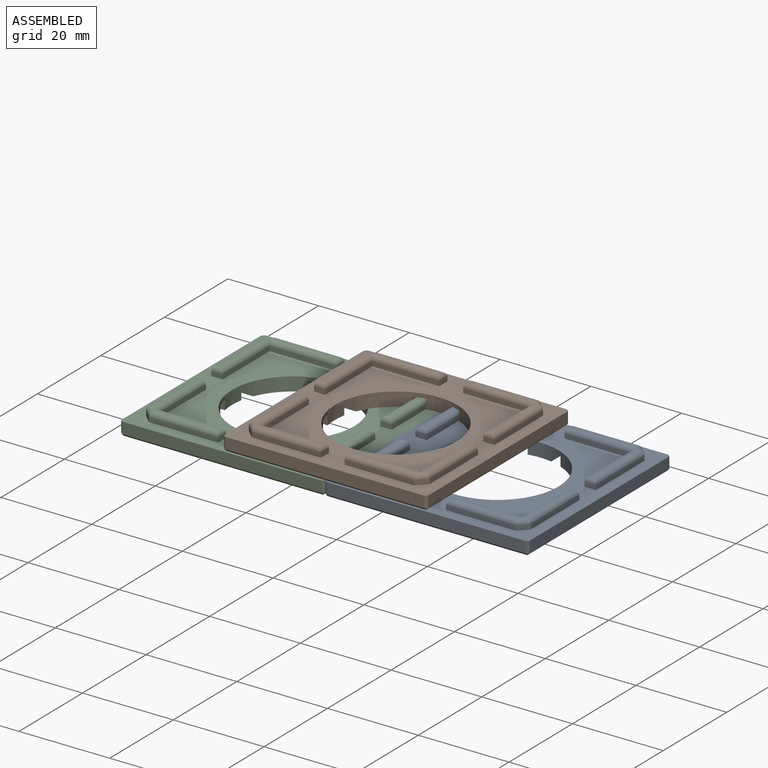
[diagram: assembled view]
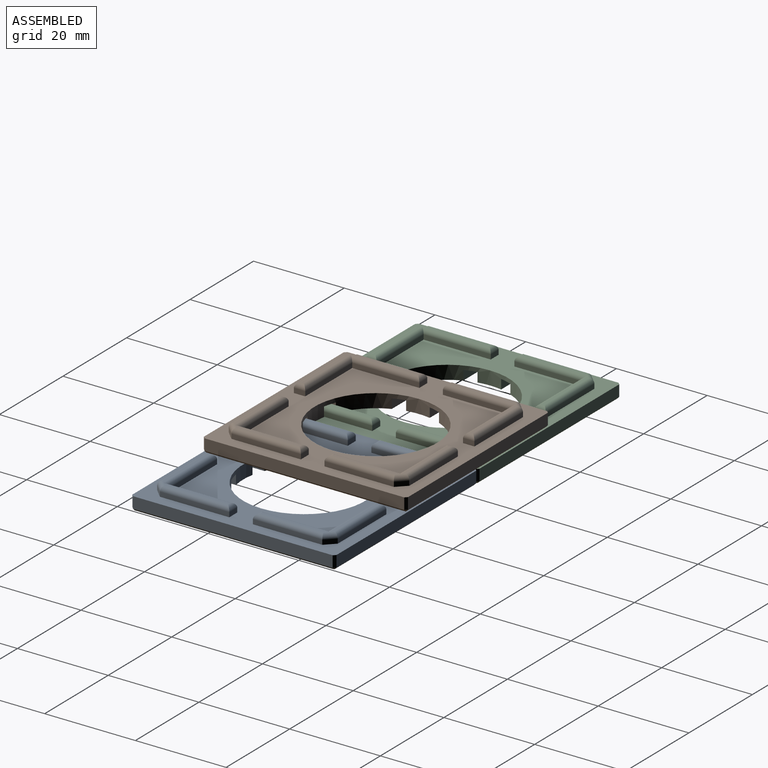
[diagram: assembled view, second angle]
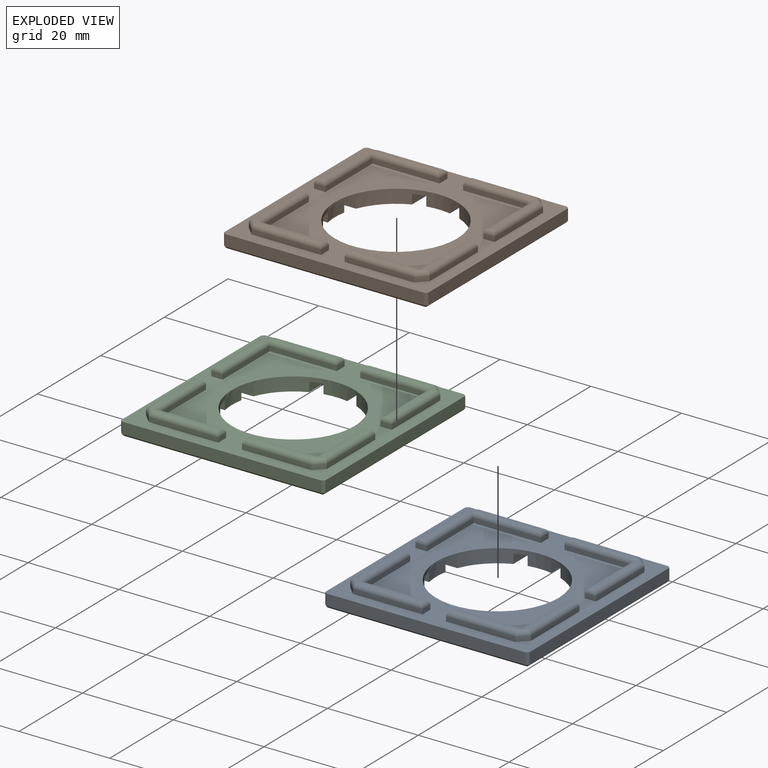
[diagram: exploded view]
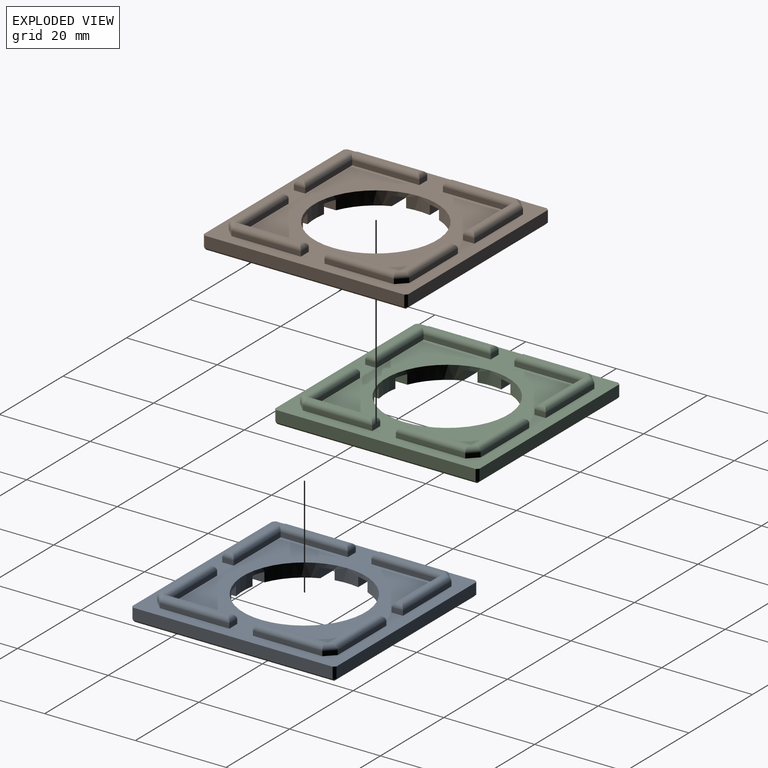
[diagram: exploded view, second angle]
ASSEMBLY  parts=3 mates=3
PART A: 128 faces, bbox 45x45x5 mm
  f0: plane 5.2x2.1mm, normal (0,-1,0), area 10.9mm2, adj f3,f51,f125,f126
  f1: plane 11.4x2.1mm, normal (0,-1,0), area 23.9mm2, adj f8,f51,f75,f127
  f2: cylinder r=13.5mm len=27mm, axis (0,0,1), area 208.7mm2, adj f3,f4,f7,f8,f11,f12,f15,f33
  f3: plane 5.2x3.85mm, normal (0,0,-1), area 19.2mm2, adj f0,f2,f125,f126
  f4: plane 11.9x11.9mm, normal (0,0,-1), area 108.2mm2, adj f2,f14,f48,f74,f115,f124
  f5: plane 5.2x2.1mm, normal (-1,0,0), area 10.9mm2, adj f7,f51,f121,f122
  f6: plane 11.4x2.1mm, normal (-1,0,0), area 23.9mm2, adj f12,f51,f72,f123
  f7: plane 5.2x3.85mm, normal (0,0,-1), area 19.2mm2, adj f2,f5,f121,f122
  f8: plane 11.9x11.9mm, normal (0,0,-1), area 108.2mm2, adj f1,f2,f47,f75,f120,f127
  f9: plane 5.2x2.1mm, normal (0,1,0), area 10.9mm2, adj f11,f51,f117,f118
  f10: plane 11.4x2.1mm, normal (0,1,0), area 23.9mm2, adj f33,f51,f73,f119
  f11: plane 5.2x3.85mm, normal (0,0,-1), area 19.2mm2, adj f2,f9,f117,f118
  f12: plane 11.9x11.9mm, normal (0,0,-1), area 108.2mm2, adj f2,f6,f46,f72,f116,f123
  f13: plane 5.2x2.1mm, normal (1,0,0), area 10.9mm2, adj f15,f51,f113,f114
  f14: plane 11.4x2.1mm, normal (1,0,0), area 23.9mm2, adj f4,f51,f74,f115
  f15: plane 5.2x3.85mm, normal (0,0,-1), area 19.2mm2, adj f2,f13,f113,f114
  f16: plane 14.39x0.5mm, normal (0,0,1), area 7.1mm2, adj f105,f106,f107,f110
  f17: plane 14.39x0.5mm, normal (0,0,1), area 7.1mm2, adj f98,f99,f100,f101
  f18: plane 14.39x0.5mm, normal (0,0,1), area 7.1mm2, adj f91,f92,f93,f94
  f19: plane 14.39x0.5mm, normal (0,0,1), area 7.1mm2, adj f85,f88,f89,f90
  f20: plane 14.39x0.5mm, normal (0,0,1), area 7.1mm2, adj f84,f86,f87,f89
  f21: plane 15.3x1mm, normal (0,-1,0), area 15.3mm2, adj f41,f68,f83,f96
  f22: plane 15.3x1mm, normal (0,-1,0), area 15.3mm2, adj f41,f71,f82,f90
  f23: plane 14.8x1mm, normal (0,1,0), area 14.8mm2, adj f41,f53,f83,f95
  f24: plane 14.39x0.5mm, normal (0,0,1), area 7.1mm2, adj f94,f95,f96,f97
  f25: plane 15.3x1mm, normal (-1,0,0), area 15.3mm2, adj f41,f69,f81,f103
  f26: plane 15.3x1mm, normal (-1,0,0), area 15.3mm2, adj f41,f68,f80,f92
  f27: plane 14.8x1mm, normal (1,0,0), area 14.8mm2, adj f41,f52,f81,f102
  f28: plane 15.3x1mm, normal (0,1,0), area 15.3mm2, adj f41,f70,f79,f111
  f29: plane 14.39x0.5mm, normal (0,0,1), area 7.1mm2, adj f101,f102,f103,f104
  f30: plane 14.8x1mm, normal (0,-1,0), area 14.8mm2, adj f41,f55,f79,f108
  f31: plane 15.3x1mm, normal (1,0,0), area 15.3mm2, adj f41,f71,f77,f87
  f32: plane 14.8x1mm, normal (-1,0,0), area 14.8mm2, adj f41,f54,f77,f86
  f33: plane 11.9x11.9mm, normal (0,0,-1), area 108.2mm2, adj f2,f10,f49,f73,f112,f119
  f34: plane 44x2.5mm, normal (-1,0,0), area 110mm2, adj f41,f56,f58,f59
  f35: plane 44x2.5mm, normal (0,-1,0), area 110mm2, adj f41,f56,f60,f61
  f36: plane 44x2.5mm, normal (1,0,0), area 110mm2, adj f41,f61,f65,f67
  f37: plane 44x2.5mm, normal (0,1,0), area 110mm2, adj f41,f58,f64,f67
  f38: plane 44x44mm, normal (0,0,-1), area 336mm2, adj f43,f44,f45,f50,f59,f60,f64,f65
  f39: plane 15.3x1mm, normal (0,1,0), area 15.3mm2, adj f41,f69,f78,f99
  f40: plane 15.3x1mm, normal (1,0,0), area 15.3mm2, adj f41,f70,f76,f106
  f41: plane 45x45mm, normal (0,0,1), area 1138.9mm2, adj f2,f21,f22,f23,f25,f26,f27,f28
  f42: plane 14.39x0.5mm, normal (0,0,1), area 7.1mm2, adj f108,f109,f110,f111
  f43: plane 40x2.1mm, normal (1,0,0), area 84mm2, adj f38,f44,f50,f51
  f44: plane 40x2.1mm, normal (0,-1,0), area 84mm2, adj f38,f43,f45,f51
  f45: plane 40x2.1mm, normal (-1,0,0), area 84mm2, adj f38,f44,f50,f51
  f46: plane 11.4x2.1mm, normal (0,1,0), area 23.9mm2, adj f12,f51,f72,f116
  f47: plane 11.4x2.1mm, normal (-1,0,0), area 23.9mm2, adj f8,f51,f75,f120
  f48: plane 11.4x2.1mm, normal (0,-1,0), area 23.9mm2, adj f4,f51,f74,f124
  f49: plane 11.4x2.1mm, normal (1,0,0), area 23.9mm2, adj f33,f51,f73,f112
  f50: plane 40x2.1mm, normal (0,1,0), area 84mm2, adj f38,f43,f45,f51
  f51: plane 40x40mm, normal (0,0,-1), area 518.2mm2, adj f0,f1,f2,f5,f6,f9,f10,f13
  f52: plane 14.8x1mm, normal (0,-1,0), area 14.8mm2, adj f27,f41,f78,f100
  f53: plane 14.8x1mm, normal (1,0,0), area 14.8mm2, adj f23,f41,f80,f93
  f54: plane 14.8x1mm, normal (0,1,0), area 14.8mm2, adj f32,f41,f82,f85
  f55: plane 14.8x1mm, normal (-1,0,0), area 14.8mm2, adj f30,f41,f76,f107
  f56: plane 2.5x0.5mm, normal (-0.71,-0.71,0), area 1.8mm2, adj f34,f35,f41,f57
  f57: plane 0.5x0.5mm, normal (-0.58,-0.58,-0.58), area 0.2mm2, adj f56,f59,f60
  f58: plane 2.5x0.5mm, normal (-0.71,0.71,0), area 1.8mm2, adj f34,f37,f41,f62
  f59: plane 44x0.5mm, normal (-0.71,0,-0.71), area 31.1mm2, adj f34,f38,f57,f62
  f60: plane 44x0.5mm, normal (0,-0.71,-0.71), area 31.1mm2, adj f35,f38,f57,f63
  f61: plane 2.5x0.5mm, normal (0.71,-0.71,0), area 1.8mm2, adj f35,f36,f41,f63
  f62: plane 0.5x0.5mm, normal (-0.58,0.58,-0.58), area 0.2mm2, adj f58,f59,f64
  f63: plane 0.5x0.5mm, normal (0.58,-0.58,-0.58), area 0.2mm2, adj f60,f61,f65
  f64: plane 44x0.5mm, normal (0,0.71,-0.71), area 31.1mm2, adj f37,f38,f62,f66
  f65: plane 44x0.5mm, normal (0.71,0,-0.71), area 31.1mm2, adj f36,f38,f63,f66
  f66: plane 0.5x0.5mm, normal (0.58,0.58,-0.58), area 0.2mm2, adj f64,f65,f67
  f67: plane 2.5x0.5mm, normal (0.71,0.71,0), area 1.8mm2, adj f36,f37,f41,f66
  f68: plane 2x2mm, normal (-0.71,-0.71,0), area 2.8mm2, adj f21,f26,f41,f94
  f69: plane 2x2mm, normal (-0.71,0.71,0), area 2.8mm2, adj f25,f39,f41,f101
  f70: plane 2x2mm, normal (0.71,0.71,0), area 2.8mm2, adj f28,f40,f41,f110
  f71: plane 2x2mm, normal (0.71,-0.71,0), area 2.8mm2, adj f22,f31,f41,f89
  f72: plane 2.1x0.5mm, normal (-0.71,0.71,0), area 1.5mm2, adj f6,f12,f46,f51
  f73: plane 2.1x0.5mm, normal (0.71,0.71,0), area 1.5mm2, adj f10,f33,f49,f51
  f74: plane 2.1x0.5mm, normal (0.71,-0.71,0), area 1.5mm2, adj f4,f14,f48,f51
  f75: plane 2.1x0.5mm, normal (-0.71,-0.71,0), area 1.5mm2, adj f1,f8,f47,f51
  f76: plane 2.5x1mm, normal (0,-1,0), area 2.5mm2, adj f40,f41,f55,f105
  f77: plane 2.5x1mm, normal (0,1,0), area 2.5mm2, adj f31,f32,f41,f84
  f78: plane 2.5x1mm, normal (1,0,0), area 2.5mm2, adj f39,f41,f52,f98
  f79: plane 2.5x1mm, normal (-1,0,0), area 2.5mm2, adj f28,f30,f41,f109
  f80: plane 2.5x1mm, normal (0,1,0), area 2.5mm2, adj f26,f41,f53,f91
  f81: plane 2.5x1mm, normal (0,-1,0), area 2.5mm2, adj f25,f27,f41,f104
  f82: plane 2.5x1mm, normal (-1,0,0), area 2.5mm2, adj f22,f41,f54,f88
  f83: plane 2.5x1mm, normal (1,0,0), area 2.5mm2, adj f21,f23,f41,f97
  f84: cylinder r=1mm len=2.5mm, axis (1,0,0), area 2.8mm2, adj f20,f77,f86,f87
  f85: cylinder r=1mm len=15.68mm, axis (-1,0,0), area 23.2mm2, adj f19,f54,f86,f88,f89
  f86: cylinder r=1mm len=15.68mm, axis (0,-1,0), area 23.2mm2, adj f20,f32,f84,f85,f89
  f87: cylinder r=1mm len=15.3mm, axis (0,1,0), area 23.2mm2, adj f20,f31,f84,f89
  f88: cylinder r=1mm len=2.5mm, axis (0,-1,0), area 2.8mm2, adj f19,f82,f85,f90
  f89: cylinder r=1mm len=2.71mm, axis (0.71,0.71,0), area 3.9mm2, adj f19,f20,f71,f85,f86,f87,f90
  f90: cylinder r=1mm len=15.3mm, axis (1,0,0), area 23.2mm2, adj f19,f22,f88,f89
  f91: cylinder r=1mm len=2.5mm, axis (-1,0,0), area 2.8mm2, adj f18,f80,f92,f93
  f92: cylinder r=1mm len=15.3mm, axis (0,-1,0), area 23.2mm2, adj f18,f26,f91,f94
  f93: cylinder r=1mm len=15.68mm, axis (0,1,0), area 23.2mm2, adj f18,f53,f91,f94,f95
  f94: cylinder r=1mm len=2.71mm, axis (-0.71,0.71,0), area 3.9mm2, adj f18,f24,f68,f92,f93,f95,f96
  f95: cylinder r=1mm len=15.68mm, axis (-1,0,0), area 23.2mm2, adj f23,f24,f93,f94,f97
  f96: cylinder r=1mm len=15.3mm, axis (1,0,0), area 23.2mm2, adj f21,f24,f94,f97
  f97: cylinder r=1mm len=2.5mm, axis (0,-1,0), area 2.8mm2, adj f24,f83,f95,f96
  f98: cylinder r=1mm len=2.5mm, axis (0,1,0), area 2.8mm2, adj f17,f78,f99,f100
  f99: cylinder r=1mm len=15.3mm, axis (-1,0,0), area 23.2mm2, adj f17,f39,f98,f101
  f100: cylinder r=1mm len=15.68mm, axis (1,0,0), area 23.2mm2, adj f17,f52,f98,f101,f102
  f101: cylinder r=1mm len=2.71mm, axis (-0.71,-0.71,0), area 3.9mm2, adj f17,f29,f69,f99,f100,f102,f103
  f102: cylinder r=1mm len=15.68mm, axis (0,1,0), area 23.2mm2, adj f27,f29,f100,f101,f104
  f103: cylinder r=1mm len=15.3mm, axis (0,-1,0), area 23.2mm2, adj f25,f29,f101,f104
  f104: cylinder r=1mm len=2.5mm, axis (-1,0,0), area 2.8mm2, adj f29,f81,f102,f103
  f105: cylinder r=1mm len=2.5mm, axis (1,0,0), area 2.8mm2, adj f16,f76,f106,f107
  f106: cylinder r=1mm len=15.3mm, axis (0,1,0), area 23.2mm2, adj f16,f40,f105,f110
  f107: cylinder r=1mm len=15.68mm, axis (0,-1,0), area 23.2mm2, adj f16,f55,f105,f108,f110
  f108: cylinder r=1mm len=15.68mm, axis (1,0,0), area 23.2mm2, adj f30,f42,f107,f109,f110
  f109: cylinder r=1mm len=2.5mm, axis (0,1,0), area 2.8mm2, adj f42,f79,f108,f111
  f110: cylinder r=1mm len=2.71mm, axis (0.71,-0.71,0), area 3.9mm2, adj f16,f42,f70,f106,f107,f108,f111
  f111: cylinder r=1mm len=15.3mm, axis (-1,0,0), area 23.2mm2, adj f28,f42,f109,f110
  f112: plane 4.64x2.1mm, normal (0,-1,0), area 9.7mm2, adj f2,f33,f49,f51
  f113: plane 3.85x2.1mm, normal (0,1,0), area 8.1mm2, adj f2,f13,f15,f51
  f114: plane 3.85x2.1mm, normal (0,-1,0), area 8.1mm2, adj f2,f13,f15,f51
  f115: plane 4.64x2.1mm, normal (0,1,0), area 9.7mm2, adj f2,f4,f14,f51
  f116: plane 4.64x2.1mm, normal (1,0,0), area 9.7mm2, adj f2,f12,f46,f51
  f117: plane 3.85x2.1mm, normal (-1,0,0), area 8.1mm2, adj f2,f9,f11,f51
  f118: plane 3.85x2.1mm, normal (1,0,0), area 8.1mm2, adj f2,f9,f11,f51
  f119: plane 4.64x2.1mm, normal (-1,0,0), area 9.7mm2, adj f2,f10,f33,f51
  f120: plane 4.64x2.1mm, normal (0,1,0), area 9.7mm2, adj f2,f8,f47,f51
  f121: plane 3.85x2.1mm, normal (0,-1,0), area 8.1mm2, adj f2,f5,f7,f51
  f122: plane 3.85x2.1mm, normal (0,1,0), area 8.1mm2, adj f2,f5,f7,f51
  f123: plane 4.64x2.1mm, normal (0,-1,0), area 9.7mm2, adj f2,f6,f12,f51
  f124: plane 4.64x2.1mm, normal (-1,0,0), area 9.7mm2, adj f2,f4,f48,f51
  f125: plane 3.85x2.1mm, normal (1,0,0), area 8.1mm2, adj f0,f2,f3,f51
  f126: plane 3.85x2.1mm, normal (-1,0,0), area 8.1mm2, adj f0,f2,f3,f51
  f127: plane 4.64x2.1mm, normal (1,0,0), area 9.7mm2, adj f1,f2,f8,f51
PART B: same geometry as A
PART C: same geometry as A
PLACE A t=(-3.33,-7.84,11.38)mm
PLACE B t=(-25.73,-7.76,14.38)mm
PLACE C rot(axis=(0,0,1),180deg) t=(-3.33,37.16,11.38)mm
MATE planar C.f34 <-> A.f34  axis (1,0,0) through (-3.33,14.66,13.13)mm
MATE planar C.f2 <-> A.f38  axis (0,0,-1) through (-25.83,14.66,11.38)mm
MATE planar B.f2 <-> A.f41  axis (0,0,-1) through (-3.23,14.74,14.38)mm
